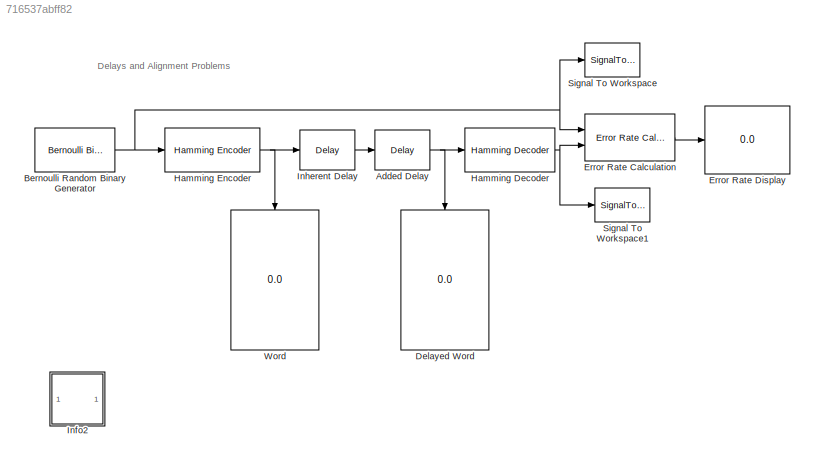
MODEL slx_716537abff82
KIND model
BLOCK [Reference] Added Delay  REF=dspsigops/Delay
  InputProcessing = Columns as channels (frame based)
  Ports = [1, 1]
  SourceBlock = dspsigops/Delay
  SourceType = Delay
  UserDataPersistent = on
  delay = 0
  dif_ic_for_ch = off
  dif_ic_for_dly = off
  dly_unit = Samples
  ic = 0
  ic_detail = off
  reset_popup = None
BLOCK [Reference] Bernoulli Random Binary Generator  REF=commrandsrc2/Bernoulli Binary
Generator
  P = 0.5
  Ports = [0, 1]
  SourceBlock = commrandsrc2/Bernoulli Binary\nGenerator
  SourceType = Bernoulli Binary Generator
  Ts = 1
  frameBased = on
  orient = off
  outDataType = double
  sampPerFrame = 4
  seed = 89
BLOCK [Display] Delayed Word
  Decimation = 1
  Ports = [1]
BLOCK [Reference] Error Rate Calculation  REF=commsink2/Error Rate
Calculation
  N = 0
  PMode = Port
  Ports = [2, 1]
  RsMode2 = off
  SourceBlock = commsink2/Error Rate\nCalculation
  SourceType = Error Rate Calculation
  WsName = ErrorVec
  cp_mode = Entire frame
  maxBits = 1e5
  numErr = 100
  st_delay = 0
  stop = off
  subframe = []
BLOCK [Display] Error Rate Display
  Decimation = 1
  Ports = [1]
BLOCK [Reference] Hamming Decoder  REF=commblkcod2/Hamming Decoder
  Ports = [1, 1]
  SourceBlock = commblkcod2/Hamming Decoder
  SourceType = Hamming Decoder
  k = gfprimfd(3,'min')
  n = 7
BLOCK [Reference] Hamming Encoder  REF=commblkcod2/Hamming Encoder
  Ports = [1, 1]
  SourceBlock = commblkcod2/Hamming Encoder
  SourceType = Hamming Encoder
  k = gfprimfd(3,'min')
  n = 7
BLOCK [SubSystem] Info2
  AncestorBlock = commblksprivate/Info
  OpenFcn = helpview([docroot '/toolbox/comm/comm.map'], 'doc_alignment')
  Ports = []
  RequestExecContextInheritance = off
BLOCK [Reference] Inherent Delay  REF=dspsigops/Delay
  InputProcessing = Columns as channels (frame based)
  Ports = [1, 1]
  SourceBlock = dspsigops/Delay
  SourceType = Delay
  UserDataPersistent = on
  delay = 1
  dif_ic_for_ch = off
  dif_ic_for_dly = off
  dly_unit = Samples
  ic = 0
  ic_detail = off
  reset_popup = None
BLOCK [SignalToWorkspace] Signal To Workspace
  CopyFcn = dspblkcopystw(gcbh);
  MaxDataPoints = inf
  Ports = [1]
  Save2DSignal = Inherit from input (this choice will be removed - see release notes)
  VariableName = tx
BLOCK [SignalToWorkspace] Signal To Workspace1
  CopyFcn = dspblkcopystw(gcbh);
  MaxDataPoints = inf
  Ports = [1]
  Save2DSignal = Inherit from input (this choice will be removed - see release notes)
  VariableName = rx
BLOCK [Display] Word
  Decimation = 1
  Ports = [1]
ANNOTATION (root): Delays and Alignment Problems
NET Added Delay:1 -> Delayed Word:1, Hamming Decoder:1
NET Bernoulli Random Binary Generator:1 -> Error Rate Calculation:1, Hamming Encoder:1, Signal To Workspace:1
LINE Error Rate Calculation:1 -> Error Rate Display:1
NET Hamming Decoder:1 -> Error Rate Calculation:2, Signal To Workspace1:1
NET Hamming Encoder:1 -> Inherent Delay:1, Word:1
LINE Inherent Delay:1 -> Added Delay:1
note: NET lines group one-source signal fan-out (src -> all destinations, sorted); 1:1 wires keep LINE
